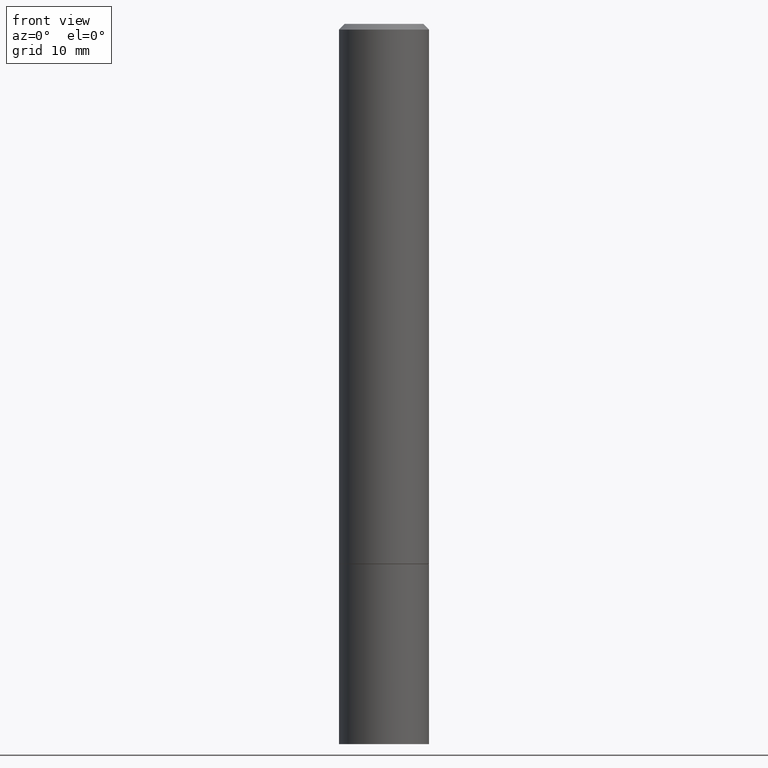
[diagram: clean part render]
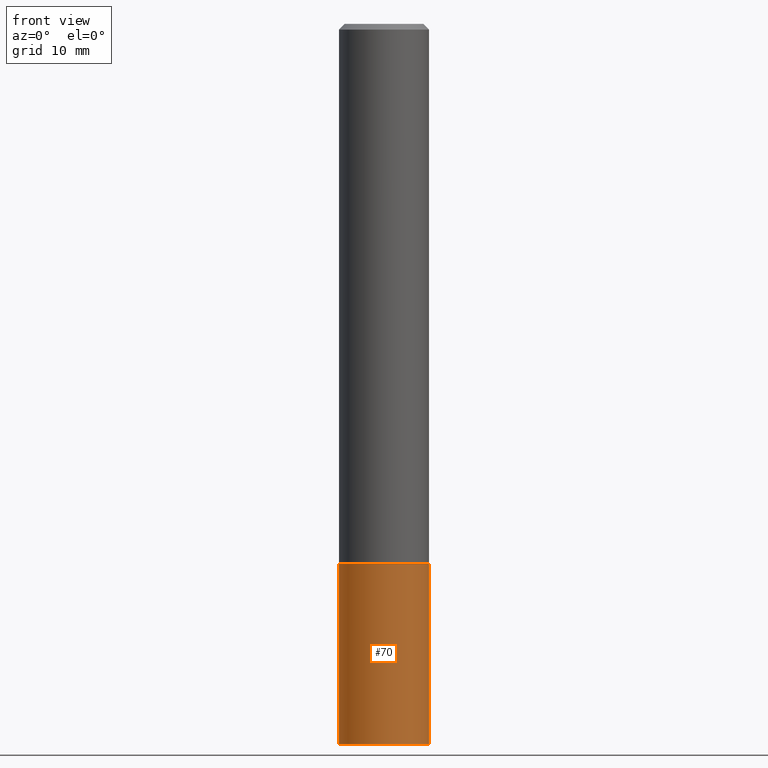
[diagram: same view with one face highlighted and labeled with its STEP entity id]
A machine part, front view. The second image highlights one B-rep face of the part: STEP entity #70.
In plain terms, the highlighted cylindrical surface (partial cylindrical patch) has radius 3.9688 mm, axis along (-0, 0, 1).
Its self-contained STEP definition (entity closure, byte-faithful):
#4 = VERTEX_POINT ( 'NONE', #42 ) ;
#7 = EDGE_CURVE ( 'NONE', #4, #174, #178, .T. ) ;
#16 = DIRECTION ( 'NONE',  ( 1.000000000000000000, -6.982962677686269077E-15, 0.000000000000000000 ) ) ;
#20 = DIRECTION ( 'NONE',  ( -2.445468806185136597E-29, 3.491481338843145583E-15, 1.000000000000000000 ) ) ;
#25 = VECTOR ( 'NONE', #195, 39.37007874015748143 ) ;
#27 = EDGE_LOOP ( 'NONE', ( #113, #310, #166, #199 ) ) ;
#41 = CARTESIAN_POINT ( 'NONE',  ( 4.585254011597131119E-29, -6.546527510330898707E-15, -1.875000000000000000 ) ) ;
#42 = CARTESIAN_POINT ( 'NONE',  ( -0.1562500000000000000, -6.527392404094224496E-15, -1.875000000000000000 ) ) ;
#70 = ADVANCED_FACE ( 'NONE', ( #318 ), #262, .T. ) ;
#91 = DIRECTION ( 'NONE',  ( -2.445468806185136597E-29, 3.491481338843145583E-15, 1.000000000000000000 ) ) ;
#97 = CARTESIAN_POINT ( 'NONE',  ( 0.000000000000000000, 0.000000000000000000, 0.000000000000000000 ) ) ;
#113 = ORIENTED_EDGE ( 'NONE', *, *, #361, .F. ) ;
#119 = LINE ( 'NONE', #351, #344 ) ;
#132 = CARTESIAN_POINT ( 'NONE',  ( 0.1562500000000000000, -9.819791265496344905E-15, -2.500000000000000000 ) ) ;
#133 = DIRECTION ( 'NONE',  ( 1.000000000000000000, -6.982962677686269077E-15, 0.000000000000000000 ) ) ;
#134 = EDGE_CURVE ( 'NONE', #252, #174, #119, .T. ) ;
#159 = CARTESIAN_POINT ( 'NONE',  ( 6.113672015462842613E-29, -8.728703347107864943E-15, -2.500000000000000000 ) ) ;
#166 = ORIENTED_EDGE ( 'NONE', *, *, #134, .T. ) ;
#170 = AXIS2_PLACEMENT_3D ( 'NONE', #97, #91, #321 ) ;
#174 = VERTEX_POINT ( 'NONE', #234 ) ;
#175 = DIRECTION ( 'NONE',  ( -2.445468806185136597E-29, 3.491481338843145583E-15, 1.000000000000000000 ) ) ;
#178 = CIRCLE ( 'NONE', #359, 0.1562500000000000000 ) ;
#195 = DIRECTION ( 'NONE',  ( -2.445468806185136877E-29, 3.491481338843145188E-15, 1.000000000000000000 ) ) ;
#199 = ORIENTED_EDGE ( 'NONE', *, *, #7, .F. ) ;
#203 = LINE ( 'NONE', #362, #25 ) ;
#204 = VERTEX_POINT ( 'NONE', #218 ) ;
#207 = EDGE_CURVE ( 'NONE', #204, #252, #354, .T. ) ;
#218 = CARTESIAN_POINT ( 'NONE',  ( -0.1562500000000000000, -6.527392404094224496E-15, -2.500000000000000000 ) ) ;
#220 = AXIS2_PLACEMENT_3D ( 'NONE', #159, #20, #133 ) ;
#234 = CARTESIAN_POINT ( 'NONE',  ( 0.1562500000000000000, -7.637615428719378669E-15, -1.875000000000000000 ) ) ;
#252 = VERTEX_POINT ( 'NONE', #132 ) ;
#262 = CYLINDRICAL_SURFACE ( 'NONE', #170, 0.1562500000000000000 ) ;
#310 = ORIENTED_EDGE ( 'NONE', *, *, #207, .T. ) ;
#318 = FACE_OUTER_BOUND ( 'NONE', #27, .T. ) ;
#320 = DIRECTION ( 'NONE',  ( -2.445468806185136877E-29, 3.491481338843145188E-15, 1.000000000000000000 ) ) ;
#321 = DIRECTION ( 'NONE',  ( 1.000000000000000000, -6.982962677686266711E-15, 4.876176775795936353E-29 ) ) ;
#344 = VECTOR ( 'NONE', #320, 39.37007874015748143 ) ;
#351 = CARTESIAN_POINT ( 'NONE',  ( 0.1562500000000000000, -1.091087918388479174E-15, 7.619026212181150377E-30 ) ) ;
#354 = CIRCLE ( 'NONE', #220, 0.1562500000000000000 ) ;
#359 = AXIS2_PLACEMENT_3D ( 'NONE', #41, #175, #16 ) ;
#361 = EDGE_CURVE ( 'NONE', #204, #4, #203, .T. ) ;
#362 = CARTESIAN_POINT ( 'NONE',  ( -0.1562500000000000000, 1.110223024625156540E-15, -7.685836078523291160E-30 ) ) ;